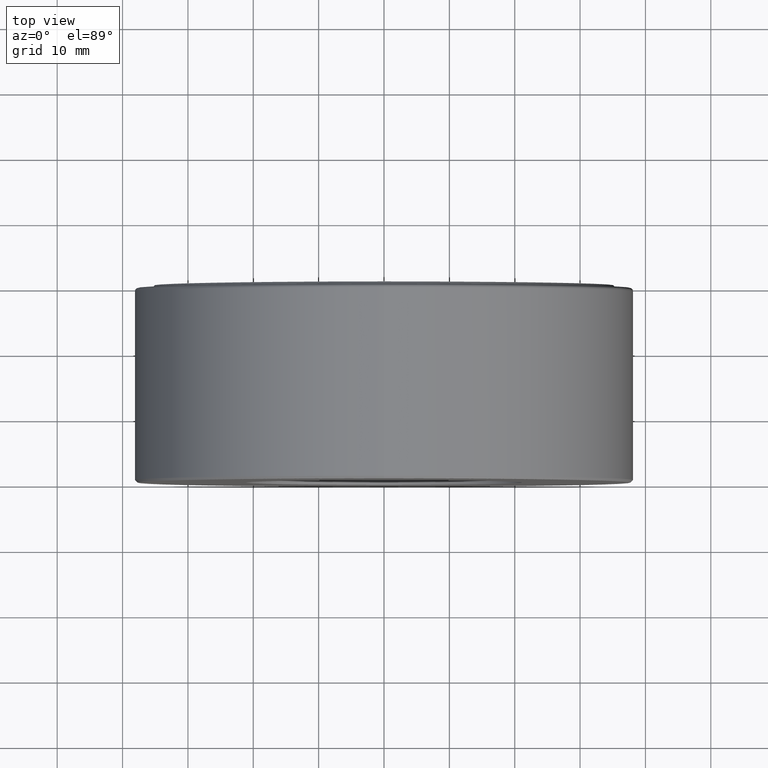
[diagram: clean part render]
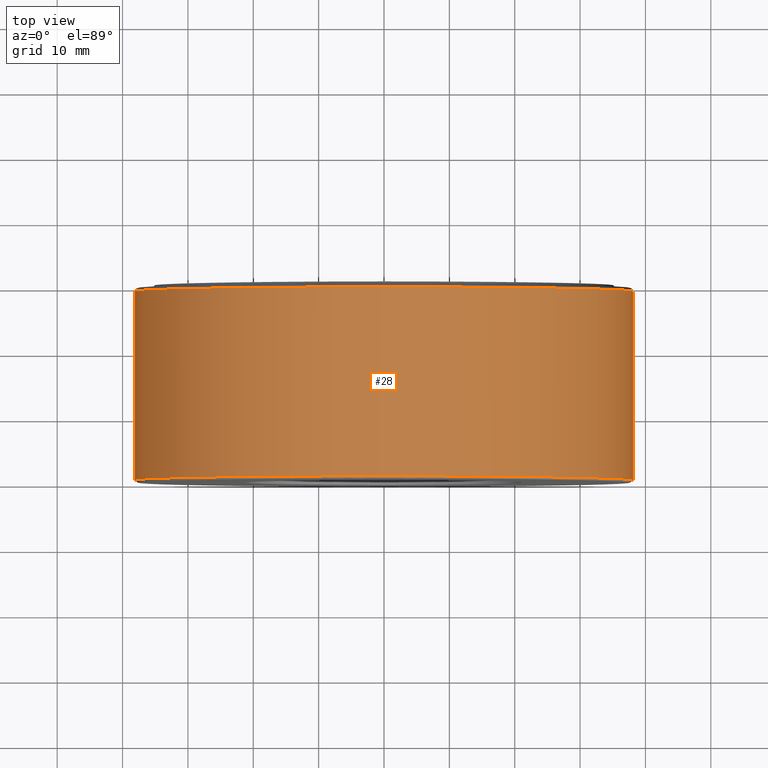
[diagram: same view with one face highlighted and labeled with its STEP entity id]
A machine part, top view. The second image highlights one B-rep face of the part: STEP entity #28.
In plain terms, the highlighted cylindrical surface (bore or boss wall) has radius 38.1 mm, axis along (-0, 1, -0).
Its self-contained STEP definition (entity closure, byte-faithful):
#20 = DIRECTION ( 'NONE',  ( -0.0000000000000000000, 1.000000000000000000, -0.0000000000000000000 ) ) ;
#21 = CARTESIAN_POINT ( 'NONE',  ( 0.0000000000000000000, 0.01499999999999984000, 1.499999999999999800 ) ) ;
#27 = EDGE_CURVE ( 'NONE', #128, #128, #433, .T. ) ;
#28 = ADVANCED_FACE ( 'NONE', ( #68, #503 ), #523, .T. ) ;
#56 = VERTEX_POINT ( 'NONE', #225 ) ;
#68 = FACE_OUTER_BOUND ( 'NONE', #565, .T. ) ;
#75 = DIRECTION ( 'NONE',  ( -0.0000000000000000000, 1.000000000000000000, -0.0000000000000000000 ) ) ;
#128 = VERTEX_POINT ( 'NONE', #21 ) ;
#171 = CARTESIAN_POINT ( 'NONE',  ( 0.0000000000000000000, 0.0000000000000000000, 0.0000000000000000000 ) ) ;
#191 = AXIS2_PLACEMENT_3D ( 'NONE', #448, #259, #262 ) ;
#209 = EDGE_LOOP ( 'NONE', ( #248 ) ) ;
#225 = CARTESIAN_POINT ( 'NONE',  ( 0.0000000000000000000, 1.152499999999999900, 1.500000000000000200 ) ) ;
#248 = ORIENTED_EDGE ( 'NONE', *, *, #27, .T. ) ;
#259 = DIRECTION ( 'NONE',  ( -0.0000000000000000000, 1.000000000000000000, -0.0000000000000000000 ) ) ;
#262 = DIRECTION ( 'NONE',  ( 0.0000000000000000000, 0.0000000000000000000, 1.000000000000000000 ) ) ;
#351 = AXIS2_PLACEMENT_3D ( 'NONE', #171, #20, #353 ) ;
#353 = DIRECTION ( 'NONE',  ( 0.0000000000000000000, 0.0000000000000000000, 1.000000000000000000 ) ) ;
#391 = ORIENTED_EDGE ( 'NONE', *, *, #525, .F. ) ;
#404 = CIRCLE ( 'NONE', #191, 1.500000000000000200 ) ;
#433 = CIRCLE ( 'NONE', #472, 1.499999999999999800 ) ;
#445 = DIRECTION ( 'NONE',  ( 0.0000000000000000000, 0.0000000000000000000, 1.000000000000000000 ) ) ;
#448 = CARTESIAN_POINT ( 'NONE',  ( 0.0000000000000000000, 1.152499999999999900, 0.0000000000000000000 ) ) ;
#472 = AXIS2_PLACEMENT_3D ( 'NONE', #539, #75, #445 ) ;
#503 = FACE_OUTER_BOUND ( 'NONE', #209, .T. ) ;
#523 = CYLINDRICAL_SURFACE ( 'NONE', #351, 1.499999999999999800 ) ;
#525 = EDGE_CURVE ( 'NONE', #56, #56, #404, .T. ) ;
#539 = CARTESIAN_POINT ( 'NONE',  ( 0.0000000000000000000, 0.01499999999999984000, 0.0000000000000000000 ) ) ;
#565 = EDGE_LOOP ( 'NONE', ( #391 ) ) ;